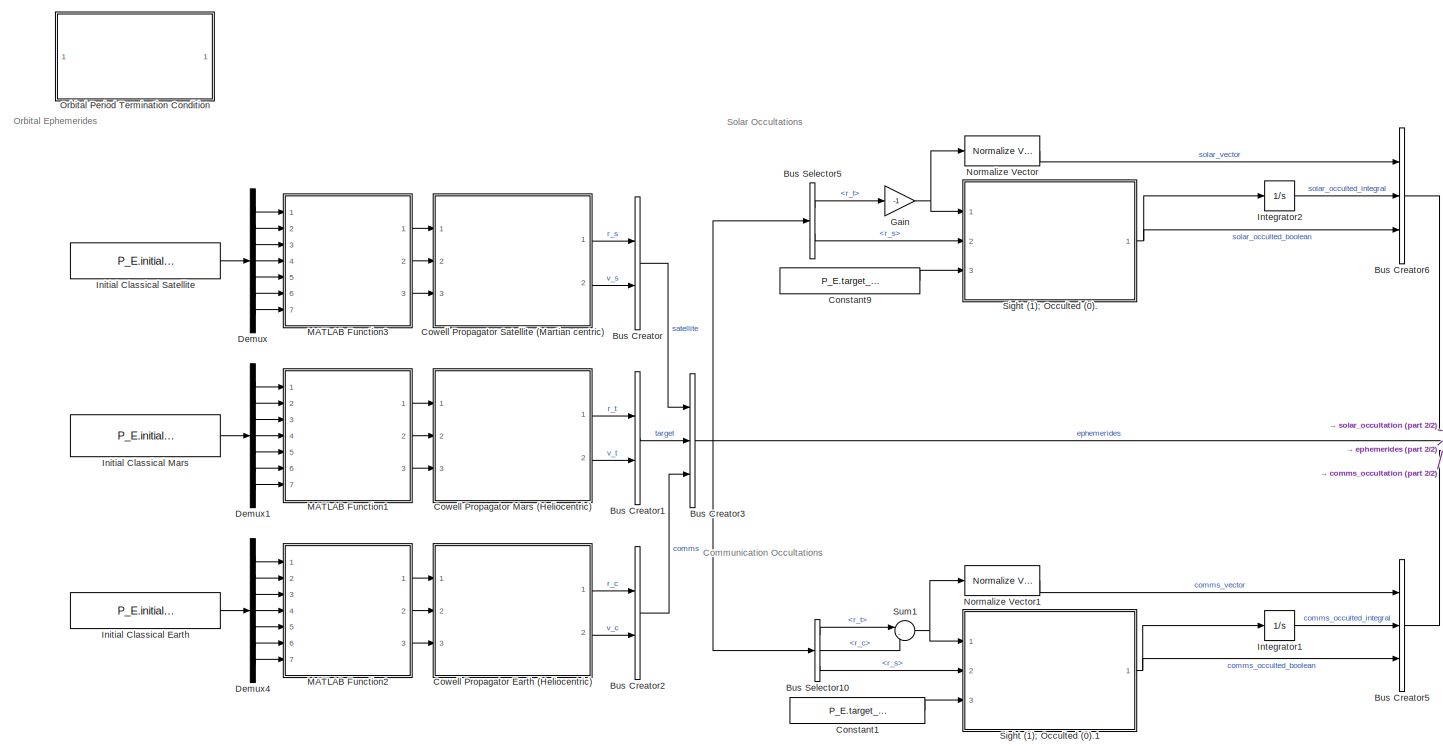
[diagram: root canvas - part 1/2, left side, full height]
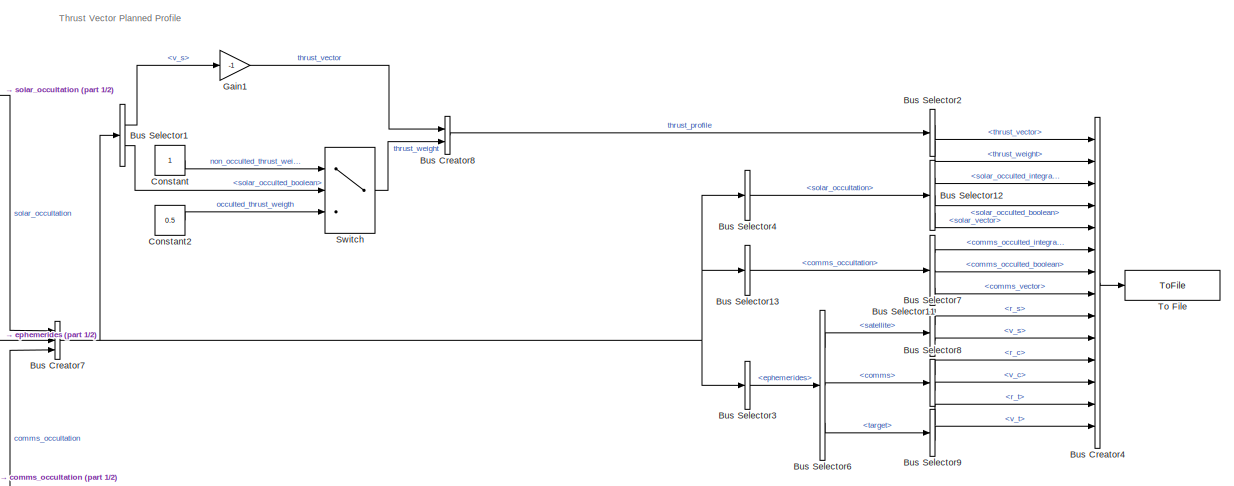
[diagram: root canvas - part 2/2, middle right region]
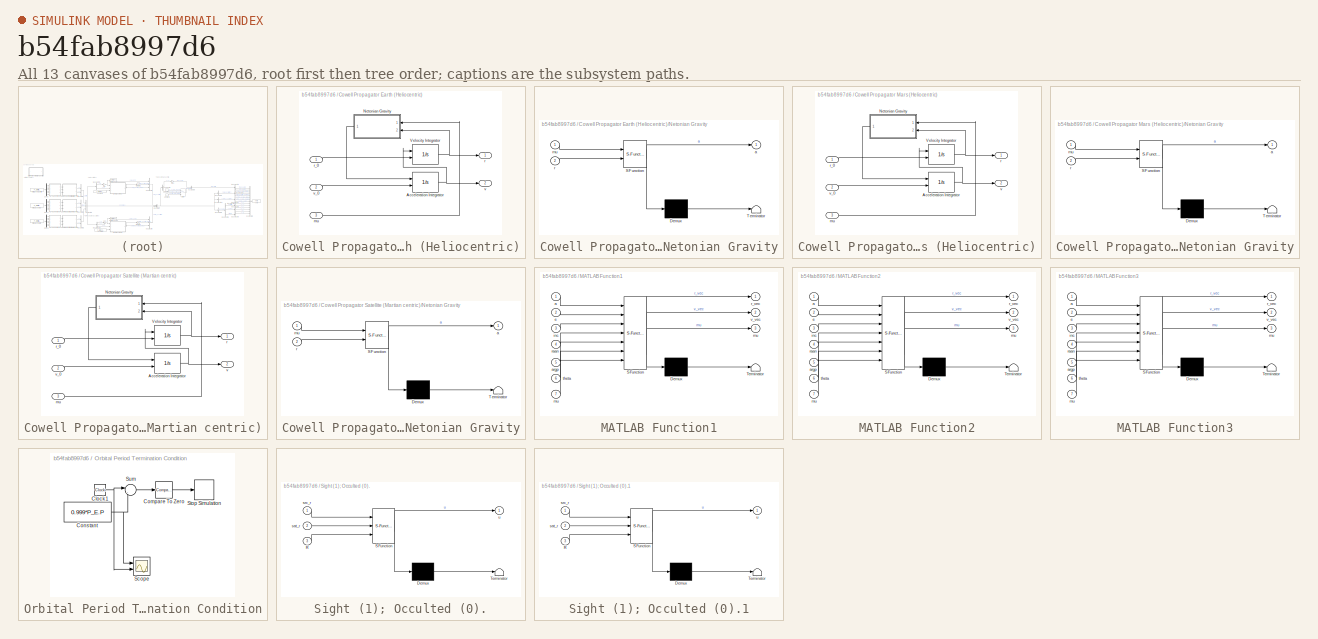
[diagram: thumbnail index - all 13 canvases of the model, root first then tree order]
MODEL slx_b54fab8997d6
KIND model
CONFIG AbsTol = auto
CONFIG EnableMultiTasking = off
CONFIG FixedStep = 1
CONFIG MaxStep = auto
CONFIG MinStep = auto
CONFIG RelTol = 1e-3
CONFIG SampleTimeConstraint = Unconstrained
CONFIG Solver = ode4
CONFIG SolverName = ode4
CONFIG StartTime = 0.0
CONFIG StopTime = 7000
BLOCK [BusCreator] Bus Creator
  DisplayOption = bar
  InheritFromInputs = on
  Inputs = 2
  Ports = [2, 1]
BLOCK [BusCreator] Bus Creator1
  DisplayOption = bar
  InheritFromInputs = on
  Inputs = 2
  Ports = [2, 1]
BLOCK [BusCreator] Bus Creator2
  DisplayOption = bar
  InheritFromInputs = on
  Inputs = 2
  Ports = [2, 1]
BLOCK [BusCreator] Bus Creator3
  DisplayOption = bar
  InheritFromInputs = on
  Inputs = 3
  Ports = [3, 1]
BLOCK [BusCreator] Bus Creator4
  DisplayOption = bar
  InheritFromInputs = on
  Inputs = 14
  Ports = [14, 1]
BLOCK [BusCreator] Bus Creator5
  DisplayOption = bar
  InheritFromInputs = on
  Inputs = 3
  Ports = [3, 1]
BLOCK [BusCreator] Bus Creator6
  DisplayOption = bar
  InheritFromInputs = on
  Inputs = 3
  Ports = [3, 1]
BLOCK [BusCreator] Bus Creator7
  DisplayOption = bar
  InheritFromInputs = on
  Inputs = 3
  Ports = [3, 1]
BLOCK [BusCreator] Bus Creator8
  DisplayOption = bar
  InheritFromInputs = on
  Inputs = 2
  Ports = [2, 1]
BLOCK [BusSelector] Bus Selector1
  OutputAsBus = off
  OutputSignals = ephemerides.satellite.v_s,solar_occultation.solar_occulted_boolean
  Ports = [1, 2]
BLOCK [BusSelector] Bus Selector10
  OutputAsBus = off
  OutputSignals = target.r_t,comms.r_c,satellite.r_s
  Ports = [1, 3]
BLOCK [BusSelector] Bus Selector11
  OutputAsBus = off
  OutputSignals = comms_occulted_integral,comms_occulted_boolean,comms_vector
  Ports = [1, 3]
BLOCK [BusSelector] Bus Selector12
  OutputAsBus = off
  OutputSignals = solar_occulted_integral,solar_occulted_boolean,solar_vector
  Ports = [1, 3]
BLOCK [BusSelector] Bus Selector13
  OutputAsBus = off
  OutputSignals = comms_occultation
  Ports = [1, 1]
BLOCK [BusSelector] Bus Selector2
  OutputAsBus = off
  OutputSignals = thrust_vector,thrust_weight
  Ports = [1, 2]
BLOCK [BusSelector] Bus Selector3
  OutputAsBus = off
  OutputSignals = ephemerides
  Ports = [1, 1]
BLOCK [BusSelector] Bus Selector4
  OutputAsBus = off
  OutputSignals = solar_occultation
  Ports = [1, 1]
BLOCK [BusSelector] Bus Selector5
  OutputAsBus = off
  OutputSignals = target.r_t,satellite.r_s
  Ports = [1, 2]
BLOCK [BusSelector] Bus Selector6
  OutputAsBus = off
  OutputSignals = satellite,comms,target
  Ports = [1, 3]
BLOCK [BusSelector] Bus Selector7
  OutputAsBus = off
  OutputSignals = r_s,v_s
  Ports = [1, 2]
BLOCK [BusSelector] Bus Selector8
  OutputAsBus = off
  OutputSignals = r_c,v_c
  Ports = [1, 2]
BLOCK [BusSelector] Bus Selector9
  OutputAsBus = off
  OutputSignals = r_t,v_t
  Ports = [1, 2]
BLOCK [Constant] Constant
BLOCK [Constant] Constant1
  Value = P_E.target_mean_radius
BLOCK [Constant] Constant2
  Value = 0.5
BLOCK [Constant] Constant9
  Value = P_E.target_mean_radius
BLOCK [SubSystem] Cowell Propagator Earth (Heliocentric)
  Ports = [3, 2]
  RequestExecContextInheritance = off
BLOCK [Integrator] Cowell Propagator Earth (Heliocentric)/Acceleration Integrator
  InitialConditionSource = external
  Ports = [2, 1]
BLOCK [SubSystem] Cowell Propagator Earth (Heliocentric)/Netonian Gravity
  ErrorFcn = Stateflow.Translate.translate
  PermitHierarchicalResolution = ExplicitOnly
  Ports = [2, 1]
  RequestExecContextInheritance = off
  SFBlockType = MATLAB Function
  TreatAsAtomicUnit = on
BLOCK [Demux] Cowell Propagator Earth (Heliocentric)/Netonian Gravity/ Demux 
  Outputs = 1
  Ports = [1, 1]
BLOCK [S-Function] Cowell Propagator Earth (Heliocentric)/Netonian Gravity/ SFunction 
  EnableBusSupport = on
  FunctionName = sf_sfun
  PortCounts = [2 2]
  Ports = [2, 2]
  SFcnIsStateOwnerBlock = off
  SFunctionDeploymentMode = off
  Tag = Stateflow S-Function 2
BLOCK [Terminator] Cowell Propagator Earth (Heliocentric)/Netonian Gravity/ Terminator 
BLOCK [Outport] Cowell Propagator Earth (Heliocentric)/Netonian Gravity/a
  IconDisplay = Port number
BLOCK [Inport] Cowell Propagator Earth (Heliocentric)/Netonian Gravity/mu
  IconDisplay = Port number
BLOCK [Inport] Cowell Propagator Earth (Heliocentric)/Netonian Gravity/r
  IconDisplay = Port number
  Port = 2
BLOCK [Integrator] Cowell Propagator Earth (Heliocentric)/Velocity Integrator
  InitialConditionSource = external
  Ports = [2, 1]
BLOCK [Inport] Cowell Propagator Earth (Heliocentric)/mu
  IconDisplay = Port number
  Port = 3
BLOCK [Outport] Cowell Propagator Earth (Heliocentric)/r
  IconDisplay = Port number
BLOCK [Inport] Cowell Propagator Earth (Heliocentric)/r_0
  IconDisplay = Port number
BLOCK [Outport] Cowell Propagator Earth (Heliocentric)/v
  IconDisplay = Port number
  Port = 2
BLOCK [Inport] Cowell Propagator Earth (Heliocentric)/v_0
  IconDisplay = Port number
  Port = 2
BLOCK [SubSystem] Cowell Propagator Mars (Heliocentric)
  Ports = [3, 2]
  RequestExecContextInheritance = off
BLOCK [Integrator] Cowell Propagator Mars (Heliocentric)/Acceleration Integrator
  InitialConditionSource = external
  Ports = [2, 1]
BLOCK [SubSystem] Cowell Propagator Mars (Heliocentric)/Netonian Gravity
  ErrorFcn = Stateflow.Translate.translate
  PermitHierarchicalResolution = ExplicitOnly
  Ports = [2, 1]
  RequestExecContextInheritance = off
  SFBlockType = MATLAB Function
  TreatAsAtomicUnit = on
BLOCK [Demux] Cowell Propagator Mars (Heliocentric)/Netonian Gravity/ Demux 
  Outputs = 1
  Ports = [1, 1]
BLOCK [S-Function] Cowell Propagator Mars (Heliocentric)/Netonian Gravity/ SFunction 
  EnableBusSupport = on
  FunctionName = sf_sfun
  PortCounts = [2 2]
  Ports = [2, 2]
  SFcnIsStateOwnerBlock = off
  SFunctionDeploymentMode = off
  Tag = Stateflow S-Function 5
BLOCK [Terminator] Cowell Propagator Mars (Heliocentric)/Netonian Gravity/ Terminator 
BLOCK [Outport] Cowell Propagator Mars (Heliocentric)/Netonian Gravity/a
  IconDisplay = Port number
BLOCK [Inport] Cowell Propagator Mars (Heliocentric)/Netonian Gravity/mu
  IconDisplay = Port number
BLOCK [Inport] Cowell Propagator Mars (Heliocentric)/Netonian Gravity/r
  IconDisplay = Port number
  Port = 2
BLOCK [Integrator] Cowell Propagator Mars (Heliocentric)/Velocity Integrator
  InitialConditionSource = external
  Ports = [2, 1]
BLOCK [Inport] Cowell Propagator Mars (Heliocentric)/mu
  IconDisplay = Port number
  Port = 3
BLOCK [Outport] Cowell Propagator Mars (Heliocentric)/r
  IconDisplay = Port number
BLOCK [Inport] Cowell Propagator Mars (Heliocentric)/r_0
  IconDisplay = Port number
BLOCK [Outport] Cowell Propagator Mars (Heliocentric)/v
  IconDisplay = Port number
  Port = 2
BLOCK [Inport] Cowell Propagator Mars (Heliocentric)/v_0
  IconDisplay = Port number
  Port = 2
BLOCK [SubSystem] Cowell Propagator Satellite (Martian centric)
  Ports = [3, 2]
  RequestExecContextInheritance = off
BLOCK [Integrator] Cowell Propagator Satellite (Martian centric)/Acceleration Integrator
  InitialConditionSource = external
  Ports = [2, 1]
BLOCK [SubSystem] Cowell Propagator Satellite (Martian centric)/Netonian Gravity
  ErrorFcn = Stateflow.Translate.translate
  PermitHierarchicalResolution = ExplicitOnly
  Ports = [2, 1]
  RequestExecContextInheritance = off
  SFBlockType = MATLAB Function
  TreatAsAtomicUnit = on
BLOCK [Demux] Cowell Propagator Satellite (Martian centric)/Netonian Gravity/ Demux 
  Outputs = 1
  Ports = [1, 1]
BLOCK [S-Function] Cowell Propagator Satellite (Martian centric)/Netonian Gravity/ SFunction 
  EnableBusSupport = on
  FunctionName = sf_sfun
  PortCounts = [2 2]
  Ports = [2, 2]
  SFcnIsStateOwnerBlock = off
  SFunctionDeploymentMode = off
  Tag = Stateflow S-Function 6
BLOCK [Terminator] Cowell Propagator Satellite (Martian centric)/Netonian Gravity/ Terminator 
BLOCK [Outport] Cowell Propagator Satellite (Martian centric)/Netonian Gravity/a
  IconDisplay = Port number
BLOCK [Inport] Cowell Propagator Satellite (Martian centric)/Netonian Gravity/mu
  IconDisplay = Port number
BLOCK [Inport] Cowell Propagator Satellite (Martian centric)/Netonian Gravity/r
  IconDisplay = Port number
  Port = 2
BLOCK [Integrator] Cowell Propagator Satellite (Martian centric)/Velocity Integrator
  InitialConditionSource = external
  Ports = [2, 1]
BLOCK [Inport] Cowell Propagator Satellite (Martian centric)/mu
  IconDisplay = Port number
  Port = 3
BLOCK [Outport] Cowell Propagator Satellite (Martian centric)/r
  IconDisplay = Port number
BLOCK [Inport] Cowell Propagator Satellite (Martian centric)/r_0
  IconDisplay = Port number
BLOCK [Outport] Cowell Propagator Satellite (Martian centric)/v
  IconDisplay = Port number
  Port = 2
BLOCK [Inport] Cowell Propagator Satellite (Martian centric)/v_0
  IconDisplay = Port number
  Port = 2
BLOCK [Demux] Demux
  DisplayOption = bar
  Outputs = 7
  Ports = [1, 7]
BLOCK [Demux] Demux1
  DisplayOption = bar
  Outputs = 7
  Ports = [1, 7]
BLOCK [Demux] Demux4
  DisplayOption = bar
  Outputs = 7
  Ports = [1, 7]
BLOCK [Gain] Gain
  Gain = -1
  OutDataTypeStr = Inherit: Inherit via internal rule
  ParamDataTypeStr = Inherit: Inherit via internal rule
  SaturateOnIntegerOverflow = off
BLOCK [Gain] Gain1
  Gain = -1
  OutDataTypeStr = Inherit: Inherit via internal rule
  ParamDataTypeStr = Inherit: Inherit via internal rule
  SaturateOnIntegerOverflow = off
BLOCK [Constant] Initial Classical Earth
  Value = P_E.initial_classical_comms
BLOCK [Constant] Initial Classical Mars
  Value = P_E.initial_classical_target
  VectorParams1D = off
BLOCK [Constant] Initial Classical Satellite 
  Value = P_E.initial_classical_satellite
BLOCK [Integrator] Integrator1
  Ports = [1, 1]
BLOCK [Integrator] Integrator2
  Ports = [1, 1]
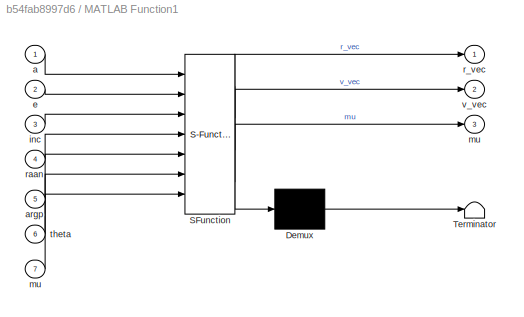
BLOCK [SubSystem] MATLAB Function1
  ErrorFcn = Stateflow.Translate.translate
  PermitHierarchicalResolution = ExplicitOnly
  Ports = [7, 3]
  RequestExecContextInheritance = off
  SFBlockType = MATLAB Function
  TreatAsAtomicUnit = on
BLOCK [Demux] MATLAB Function1/ Demux 
  Outputs = 1
  Ports = [1, 1]
BLOCK [S-Function] MATLAB Function1/ SFunction 
  EnableBusSupport = on
  FunctionName = sf_sfun
  PortCounts = [7 4]
  Ports = [7, 4]
  SFcnIsStateOwnerBlock = off
  SFunctionDeploymentMode = off
  Tag = Stateflow S-Function 4
BLOCK [Terminator] MATLAB Function1/ Terminator 
BLOCK [Inport] MATLAB Function1/a
  IconDisplay = Port number
BLOCK [Inport] MATLAB Function1/argp
  IconDisplay = Port number
  Port = 5
BLOCK [Inport] MATLAB Function1/e
  IconDisplay = Port number
  Port = 2
BLOCK [Inport] MATLAB Function1/inc
  IconDisplay = Port number
  Port = 3
BLOCK [Outport] MATLAB Function1/mu
  IconDisplay = Port number
  Port = 3
BLOCK [Inport] MATLAB Function1/mu 
  IconDisplay = Port number
  Port = 7
BLOCK [Outport] MATLAB Function1/r_vec
  IconDisplay = Port number
BLOCK [Inport] MATLAB Function1/raan
  IconDisplay = Port number
  Port = 4
BLOCK [Inport] MATLAB Function1/theta
  IconDisplay = Port number
  Port = 6
BLOCK [Outport] MATLAB Function1/v_vec
  IconDisplay = Port number
  Port = 2
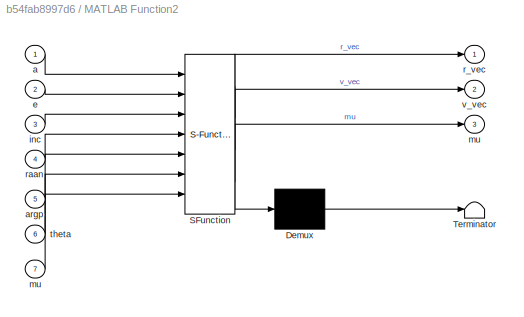
BLOCK [SubSystem] MATLAB Function2
  ErrorFcn = Stateflow.Translate.translate
  PermitHierarchicalResolution = ExplicitOnly
  Ports = [7, 3]
  RequestExecContextInheritance = off
  SFBlockType = MATLAB Function
  TreatAsAtomicUnit = on
BLOCK [Demux] MATLAB Function2/ Demux 
  Outputs = 1
  Ports = [1, 1]
BLOCK [S-Function] MATLAB Function2/ SFunction 
  EnableBusSupport = on
  FunctionName = sf_sfun
  PortCounts = [7 4]
  Ports = [7, 4]
  SFcnIsStateOwnerBlock = off
  SFunctionDeploymentMode = off
  Tag = Stateflow S-Function 3
BLOCK [Terminator] MATLAB Function2/ Terminator 
BLOCK [Inport] MATLAB Function2/a
  IconDisplay = Port number
BLOCK [Inport] MATLAB Function2/argp
  IconDisplay = Port number
  Port = 5
BLOCK [Inport] MATLAB Function2/e
  IconDisplay = Port number
  Port = 2
BLOCK [Inport] MATLAB Function2/inc
  IconDisplay = Port number
  Port = 3
BLOCK [Outport] MATLAB Function2/mu
  IconDisplay = Port number
  Port = 3
BLOCK [Inport] MATLAB Function2/mu 
  IconDisplay = Port number
  Port = 7
BLOCK [Outport] MATLAB Function2/r_vec
  IconDisplay = Port number
BLOCK [Inport] MATLAB Function2/raan
  IconDisplay = Port number
  Port = 4
BLOCK [Inport] MATLAB Function2/theta
  IconDisplay = Port number
  Port = 6
BLOCK [Outport] MATLAB Function2/v_vec
  IconDisplay = Port number
  Port = 2
BLOCK [SubSystem] MATLAB Function3
  ErrorFcn = Stateflow.Translate.translate
  PermitHierarchicalResolution = ExplicitOnly
  Ports = [7, 3]
  RequestExecContextInheritance = off
  SFBlockType = MATLAB Function
  TreatAsAtomicUnit = on
BLOCK [Demux] MATLAB Function3/ Demux 
  Outputs = 1
  Ports = [1, 1]
BLOCK [S-Function] MATLAB Function3/ SFunction 
  EnableBusSupport = on
  FunctionName = sf_sfun
  PortCounts = [7 4]
  Ports = [7, 4]
  SFcnIsStateOwnerBlock = off
  SFunctionDeploymentMode = off
  Tag = Stateflow S-Function 1
BLOCK [Terminator] MATLAB Function3/ Terminator 
BLOCK [Inport] MATLAB Function3/a
  IconDisplay = Port number
BLOCK [Inport] MATLAB Function3/argp
  IconDisplay = Port number
  Port = 5
BLOCK [Inport] MATLAB Function3/e
  IconDisplay = Port number
  Port = 2
BLOCK [Inport] MATLAB Function3/inc
  IconDisplay = Port number
  Port = 3
BLOCK [Outport] MATLAB Function3/mu
  IconDisplay = Port number
  Port = 3
BLOCK [Inport] MATLAB Function3/mu 
  IconDisplay = Port number
  Port = 7
BLOCK [Outport] MATLAB Function3/r_vec
  IconDisplay = Port number
BLOCK [Inport] MATLAB Function3/raan
  IconDisplay = Port number
  Port = 4
BLOCK [Inport] MATLAB Function3/theta
  IconDisplay = Port number
  Port = 6
BLOCK [Outport] MATLAB Function3/v_vec
  IconDisplay = Port number
  Port = 2
BLOCK [Reference] Normalize Vector  REF=vrlib/Utilities/Normalize Vector
  Ports = [1, 1]
  SourceBlock = vrlib/Utilities/Normalize Vector
  SourceProductBaseCode = SL
  SourceProductName = Simulink
  SourceType = Normalize Vector
BLOCK [Reference] Normalize Vector1  REF=vrlib/Utilities/Normalize Vector
  Ports = [1, 1]
  SourceBlock = vrlib/Utilities/Normalize Vector
  SourceProductBaseCode = SL
  SourceProductName = Simulink
  SourceType = Normalize Vector
BLOCK [SubSystem] Orbital Period Termination Condition
  Ports = []
  RequestExecContextInheritance = off
BLOCK [Clock] Orbital Period Termination Condition/Clock1
BLOCK [Reference] Orbital Period Termination Condition/Compare To Zero  REF=simulink/Logic and Bit
Operations/Compare
To Zero
  Ports = [1, 1]
  SourceBlock = simulink/Logic and Bit\nOperations/Compare\nTo Zero
  SourceProductBaseCode = SL
  SourceProductName = Simulink
  SourceType = Compare To Zero
BLOCK [Constant] Orbital Period Termination Condition/Constant
  Value = 0.999*P_E.P
BLOCK [Scope] Orbital Period Termination Condition/Scope
  Floating = off
  NumInputPorts = 2
  Ports = [2]
  ScopeSpecificationString = Simulink.scopes.TimeScopeBlockCfg('CurrentConfiguration', extmgr.ConfigurationSet(extmgr.Configuration('Core','General UI',true),extmgr.Configuration('Core','Source UI',true),extmgr.Configuration('Sources','WiredSimulink',true,'DataLoggingVariableName','ScopeData1'),extmgr.Configuration('Visuals','Time Domain',true,'SerializedDisplays',{struct('MinYLimReal','-816.15951','MaxYLimReal','7345.43558',...<+1442ch>
BLOCK [Stop] Orbital Period Termination Condition/Stop Simulation
BLOCK [Sum] Orbital Period Termination Condition/Sum
  IconShape = round
  InputSameDT = off
  Inputs = |-+
  OutDataTypeStr = Inherit: Inherit via internal rule
  Ports = [2, 1]
  SaturateOnIntegerOverflow = off
BLOCK [SubSystem] Sight (1); Occulted (0).
  ErrorFcn = Stateflow.Translate.translate
  PermitHierarchicalResolution = ExplicitOnly
  Ports = [3, 1]
  RequestExecContextInheritance = off
  SFBlockType = MATLAB Function
  TreatAsAtomicUnit = on
BLOCK [Demux] Sight (1); Occulted (0)./ Demux 
  Outputs = 1
  Ports = [1, 1]
BLOCK [S-Function] Sight (1); Occulted (0)./ SFunction 
  EnableBusSupport = on
  FunctionName = sf_sfun
  PortCounts = [3 2]
  Ports = [3, 2]
  SFcnIsStateOwnerBlock = off
  SFunctionDeploymentMode = off
  Tag = Stateflow S-Function 7
BLOCK [Terminator] Sight (1); Occulted (0)./ Terminator 
BLOCK [Inport] Sight (1); Occulted (0)./R
  IconDisplay = Port number
  Port = 3
BLOCK [Inport] Sight (1); Occulted (0)./sat_r
  IconDisplay = Port number
  Port = 2
BLOCK [Inport] Sight (1); Occulted (0)./src_r
  IconDisplay = Port number
BLOCK [Outport] Sight (1); Occulted (0)./u
  IconDisplay = Port number
BLOCK [SubSystem] Sight (1); Occulted (0).1
  ErrorFcn = Stateflow.Translate.translate
  PermitHierarchicalResolution = ExplicitOnly
  Ports = [3, 1]
  RequestExecContextInheritance = off
  SFBlockType = MATLAB Function
  TreatAsAtomicUnit = on
BLOCK [Demux] Sight (1); Occulted (0).1/ Demux 
  Outputs = 1
  Ports = [1, 1]
BLOCK [S-Function] Sight (1); Occulted (0).1/ SFunction 
  EnableBusSupport = on
  FunctionName = sf_sfun
  PortCounts = [3 2]
  Ports = [3, 2]
  SFcnIsStateOwnerBlock = off
  SFunctionDeploymentMode = off
  Tag = Stateflow S-Function 9
BLOCK [Terminator] Sight (1); Occulted (0).1/ Terminator 
BLOCK [Inport] Sight (1); Occulted (0).1/R
  IconDisplay = Port number
  Port = 3
BLOCK [Inport] Sight (1); Occulted (0).1/sat_r
  IconDisplay = Port number
  Port = 2
BLOCK [Inport] Sight (1); Occulted (0).1/src_r
  IconDisplay = Port number
BLOCK [Outport] Sight (1); Occulted (0).1/u
  IconDisplay = Port number
BLOCK [Sum] Sum1
  IconShape = round
  InputSameDT = off
  Inputs = |-+
  OutDataTypeStr = Inherit: Inherit via internal rule
  Ports = [2, 1]
  SaturateOnIntegerOverflow = off
BLOCK [Switch] Switch
  Criteria = u2 ~= 0
  InputSameDT = off
  SaturateOnIntegerOverflow = off
BLOCK [ToFile] To File
  Filename = ENVIRONMENT.mat
  MatrixName = E
  Ports = [1]
  SaveFormat = Timeseries
ANNOTATION (root): Communication Occultations
ANNOTATION (root): Orbital Ephemerides
ANNOTATION (root): Solar Occultations
ANNOTATION (root): Thrust Vector Planned Profile
LINE Bus Creator1:1 -> Bus Creator3:2
LINE Bus Creator2:1 -> Bus Creator3:3
NET Bus Creator3:1 -> Bus Creator7:2, Bus Selector10:1, Bus Selector5:1
LINE Bus Creator4:1 -> To File:1
LINE Bus Creator5:1 -> Bus Creator7:3
LINE Bus Creator6:1 -> Bus Creator7:1
NET Bus Creator7:1 -> Bus Selector13:1, Bus Selector1:1, Bus Selector3:1, Bus Selector4:1
LINE Bus Creator8:1 -> Bus Selector2:1
LINE Bus Creator:1 -> Bus Creator3:1
LINE Bus Selector10:1 -> Sum1:1
LINE Bus Selector10:2 -> Sum1:2
LINE Bus Selector10:3 -> Sight (1); Occulted (0).1:2
LINE Bus Selector11:1 -> Bus Creator4:6
LINE Bus Selector11:2 -> Bus Creator4:7
LINE Bus Selector11:3 -> Bus Creator4:8
LINE Bus Selector12:1 -> Bus Creator4:3
LINE Bus Selector12:2 -> Bus Creator4:4
LINE Bus Selector12:3 -> Bus Creator4:5
LINE Bus Selector13:1 -> Bus Selector11:1
LINE Bus Selector1:1 -> Gain1:1
LINE Bus Selector1:2 -> Switch:2
LINE Bus Selector2:1 -> Bus Creator4:1
LINE Bus Selector2:2 -> Bus Creator4:2
LINE Bus Selector3:1 -> Bus Selector6:1
LINE Bus Selector4:1 -> Bus Selector12:1
LINE Bus Selector5:1 -> Gain:1
LINE Bus Selector5:2 -> Sight (1); Occulted (0).:2
LINE Bus Selector6:1 -> Bus Selector7:1
LINE Bus Selector6:2 -> Bus Selector8:1
LINE Bus Selector6:3 -> Bus Selector9:1
LINE Bus Selector7:1 -> Bus Creator4:9
LINE Bus Selector7:2 -> Bus Creator4:10
LINE Bus Selector8:1 -> Bus Creator4:11
LINE Bus Selector8:2 -> Bus Creator4:12
LINE Bus Selector9:1 -> Bus Creator4:13
LINE Bus Selector9:2 -> Bus Creator4:14
LINE Constant1:1 -> Sight (1); Occulted (0).1:3
LINE Constant2:1 -> Switch:3
LINE Constant9:1 -> Sight (1); Occulted (0).:3
LINE Constant:1 -> Switch:1
NET Cowell Propagator Earth (Heliocentric)/Acceleration Integrator:1 -> Cowell Propagator Earth (Heliocentric)/Velocity Integrator:1, Cowell Propagator Earth (Heliocentric)/v:1
LINE Cowell Propagator Earth (Heliocentric)/Netonian Gravity:1 -> Cowell Propagator Earth (Heliocentric)/Acceleration Integrator:1
NET Cowell Propagator Earth (Heliocentric)/Velocity Integrator:1 -> Cowell Propagator Earth (Heliocentric)/Netonian Gravity:2, Cowell Propagator Earth (Heliocentric)/r:1
LINE Cowell Propagator Earth (Heliocentric)/mu:1 -> Cowell Propagator Earth (Heliocentric)/Netonian Gravity:1
LINE Cowell Propagator Earth (Heliocentric)/r_0:1 -> Cowell Propagator Earth (Heliocentric)/Velocity Integrator:2
LINE Cowell Propagator Earth (Heliocentric)/v_0:1 -> Cowell Propagator Earth (Heliocentric)/Acceleration Integrator:2
LINE Cowell Propagator Earth (Heliocentric):1 -> Bus Creator2:1
LINE Cowell Propagator Earth (Heliocentric):2 -> Bus Creator2:2
NET Cowell Propagator Mars (Heliocentric)/Acceleration Integrator:1 -> Cowell Propagator Mars (Heliocentric)/Velocity Integrator:1, Cowell Propagator Mars (Heliocentric)/v:1
LINE Cowell Propagator Mars (Heliocentric)/Netonian Gravity:1 -> Cowell Propagator Mars (Heliocentric)/Acceleration Integrator:1
NET Cowell Propagator Mars (Heliocentric)/Velocity Integrator:1 -> Cowell Propagator Mars (Heliocentric)/Netonian Gravity:2, Cowell Propagator Mars (Heliocentric)/r:1
LINE Cowell Propagator Mars (Heliocentric)/mu:1 -> Cowell Propagator Mars (Heliocentric)/Netonian Gravity:1
LINE Cowell Propagator Mars (Heliocentric)/r_0:1 -> Cowell Propagator Mars (Heliocentric)/Velocity Integrator:2
LINE Cowell Propagator Mars (Heliocentric)/v_0:1 -> Cowell Propagator Mars (Heliocentric)/Acceleration Integrator:2
LINE Cowell Propagator Mars (Heliocentric):1 -> Bus Creator1:1
LINE Cowell Propagator Mars (Heliocentric):2 -> Bus Creator1:2
NET Cowell Propagator Satellite (Martian centric)/Acceleration Integrator:1 -> Cowell Propagator Satellite (Martian centric)/Velocity Integrator:1, Cowell Propagator Satellite (Martian centric)/v:1
LINE Cowell Propagator Satellite (Martian centric)/Netonian Gravity:1 -> Cowell Propagator Satellite (Martian centric)/Acceleration Integrator:1
NET Cowell Propagator Satellite (Martian centric)/Velocity Integrator:1 -> Cowell Propagator Satellite (Martian centric)/Netonian Gravity:2, Cowell Propagator Satellite (Martian centric)/r:1
LINE Cowell Propagator Satellite (Martian centric)/mu:1 -> Cowell Propagator Satellite (Martian centric)/Netonian Gravity:1
LINE Cowell Propagator Satellite (Martian centric)/r_0:1 -> Cowell Propagator Satellite (Martian centric)/Velocity Integrator:2
LINE Cowell Propagator Satellite (Martian centric)/v_0:1 -> Cowell Propagator Satellite (Martian centric)/Acceleration Integrator:2
LINE Cowell Propagator Satellite (Martian centric):1 -> Bus Creator:1
LINE Cowell Propagator Satellite (Martian centric):2 -> Bus Creator:2
LINE Demux1:1 -> MATLAB Function1:1
LINE Demux1:2 -> MATLAB Function1:2
LINE Demux1:3 -> MATLAB Function1:3
LINE Demux1:4 -> MATLAB Function1:4
LINE Demux1:5 -> MATLAB Function1:5
LINE Demux1:6 -> MATLAB Function1:6
LINE Demux1:7 -> MATLAB Function1:7
LINE Demux4:1 -> MATLAB Function2:1
LINE Demux4:2 -> MATLAB Function2:2
LINE Demux4:3 -> MATLAB Function2:3
LINE Demux4:4 -> MATLAB Function2:4
LINE Demux4:5 -> MATLAB Function2:5
LINE Demux4:6 -> MATLAB Function2:6
LINE Demux4:7 -> MATLAB Function2:7
LINE Demux:1 -> MATLAB Function3:1
LINE Demux:2 -> MATLAB Function3:2
LINE Demux:3 -> MATLAB Function3:3
LINE Demux:4 -> MATLAB Function3:4
LINE Demux:5 -> MATLAB Function3:5
LINE Demux:6 -> MATLAB Function3:6
LINE Demux:7 -> MATLAB Function3:7
LINE Gain1:1 -> Bus Creator8:1
NET Gain:1 -> Normalize Vector:1, Sight (1); Occulted (0).:1
LINE Initial Classical Earth:1 -> Demux4:1
LINE Initial Classical Mars:1 -> Demux1:1
LINE Initial Classical Satellite :1 -> Demux:1
LINE Integrator1:1 -> Bus Creator5:2
LINE Integrator2:1 -> Bus Creator6:2
LINE MATLAB Function1:1 -> Cowell Propagator Mars (Heliocentric):1
LINE MATLAB Function1:2 -> Cowell Propagator Mars (Heliocentric):2
LINE MATLAB Function1:3 -> Cowell Propagator Mars (Heliocentric):3
LINE MATLAB Function2:1 -> Cowell Propagator Earth (Heliocentric):1
LINE MATLAB Function2:2 -> Cowell Propagator Earth (Heliocentric):2
LINE MATLAB Function2:3 -> Cowell Propagator Earth (Heliocentric):3
LINE MATLAB Function3:1 -> Cowell Propagator Satellite (Martian centric):1
LINE MATLAB Function3:2 -> Cowell Propagator Satellite (Martian centric):2
LINE MATLAB Function3:3 -> Cowell Propagator Satellite (Martian centric):3
LINE Normalize Vector1:1 -> Bus Creator5:1
LINE Normalize Vector:1 -> Bus Creator6:1
NET Orbital Period Termination Condition/Clock1:1 -> Orbital Period Termination Condition/Scope:2, Orbital Period Termination Condition/Sum:1
LINE Orbital Period Termination Condition/Compare To Zero:1 -> Orbital Period Termination Condition/Stop Simulation:1
NET Orbital Period Termination Condition/Constant:1 -> Orbital Period Termination Condition/Scope:1, Orbital Period Termination Condition/Sum:2
LINE Orbital Period Termination Condition/Sum:1 -> Orbital Period Termination Condition/Compare To Zero:1
NET Sight (1); Occulted (0).1:1 -> Bus Creator5:3, Integrator1:1
NET Sight (1); Occulted (0).:1 -> Bus Creator6:3, Integrator2:1
NET Sum1:1 -> Normalize Vector1:1, Sight (1); Occulted (0).1:1
LINE Switch:1 -> Bus Creator8:2
note: NET lines group one-source signal fan-out (src -> all destinations, sorted); 1:1 wires keep LINE
CHART MATLAB Function3 states=1 transitions=1
  STATE_LABEL 'eML_blk_kernel()'
  STATE_LABEL 'SCRIPT:\nfunction [r_vec,v_vec, mu] = coe2rv(a, e, inc, raan, argp, theta, mu)\n    cos_raan = cos(raan);\n    sin_raan = sin(raan);\n    cos_argp = cos(argp);\n    sin_argp = sin(argp);\n    cos_inc = cos(inc);\n    sin_inc = sin(inc);\n    r = a * (1 - e ^ 2) / (1.0 + e * cos(theta));\n\n    l1 = (+cos_raan * cos_argp - sin_raan * sin_argp * cos_inc);\n    l2 = (-cos_raan * sin_argp - sin_raan * cos_argp *...<+735ch>'  <repeated x3 — deduplicated; at blocks: MATLAB Function3, MATLAB Function2, MATLAB Function1>
CHART Cowell Propagator Earth (Heliocentric)/Netonian Gravity states=1 transitions=1
  STATE_LABEL 'eML_blk_kernel()'
  STATE_LABEL 'SCRIPT:\nfunction a = newtonGrav(mu, r)\n\na = -(mu / norm(r)^3) * r;\n'
CHART MATLAB Function2 states=1 transitions=1
  STATE_LABEL 'eML_blk_kernel()'
CHART MATLAB Function1 states=1 transitions=1
  STATE_LABEL 'eML_blk_kernel()'
CHART Cowell Propagator Mars (Heliocentric)/Netonian Gravity states=1 transitions=1
  STATE_LABEL 'eML_blk_kernel()'
  STATE_LABEL 'SCRIPT:\nfunction a = newtonGrav(mu, r)\n\na = -(mu / norm(r)^3) * r;\n'
CHART Cowell Propagator Satellite (Martian centric)/Netonian Gravity states=1 transitions=1
  STATE_LABEL 'eML_blk_kernel()'
  STATE_LABEL 'SCRIPT:\nfunction a = newtonGrav(mu, r)\n\na = -(mu / norm(r)^3) * r;\n'
CHART Sight (1); Occulted (0). states=1 transitions=1
  STATE_LABEL 'eML_blk_kernel()'
  STATE_LABEL 'SCRIPT:\nfunction u = sight_function(src_r, sat_r, R)\n% Parameters\n% ----------\n% src_v : double, shape=(1,3)\n%   source vector which is being checked for occultation by\n%   planet of radius rad_p. Origin of vector is center of planet.\n% sat_r : double, shape=(1,3)\n%   inertial vector of satellite orbiting planet.\n% R : double\n%   radius of the planet being orbited.\nspacecraft_h = norm(sat_r) - R; ...<+356ch>'
CHART Sight (1); Occulted (0).1 states=1 transitions=1
  STATE_LABEL 'eML_blk_kernel()'
  STATE_LABEL 'SCRIPT:\nfunction u = sight_function(src_r, sat_r, R)\n% Parameters\n% ----------\n% src_v : double, shape=(1,3)\n%   source vector which is being checked for occultation by\n%   planet of radius rad_p. Origin of vector is center of planet.\n% sat_r : double, shape=(1,3)\n%   inertial vector of satellite orbiting planet.\n% R : double\n%   radius of the planet being orbited.\nspacecraft_h = norm(sat_r) - R; ...<+356ch>'
